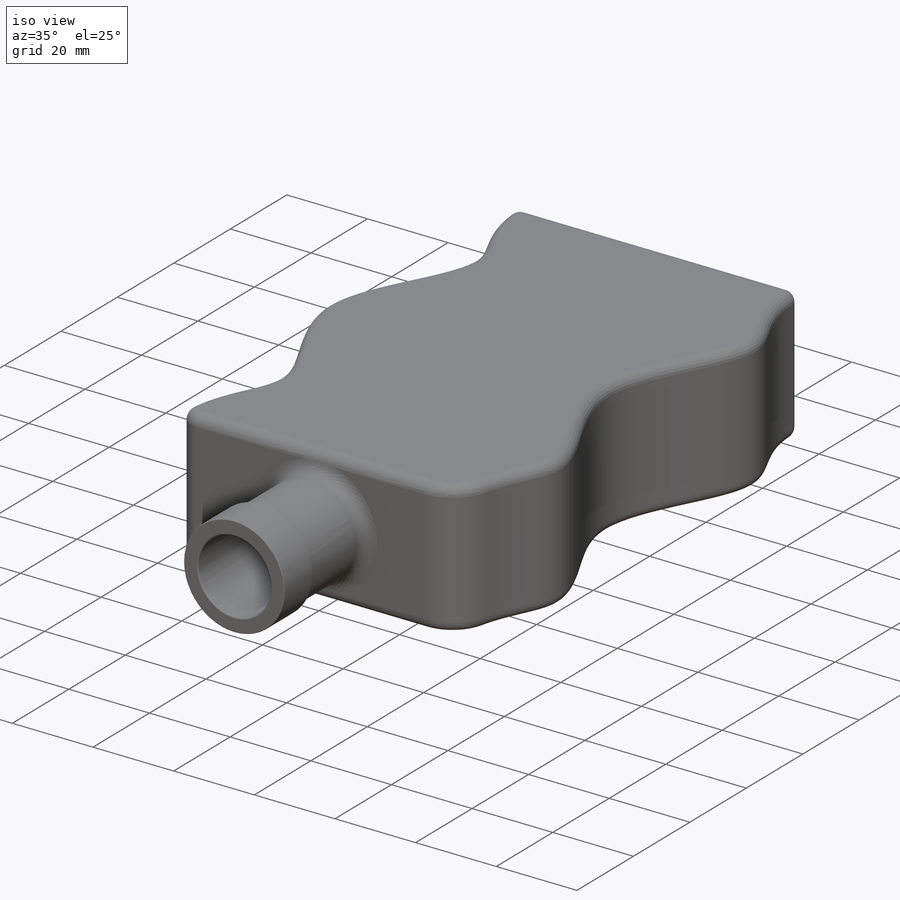
[diagram: iso view]
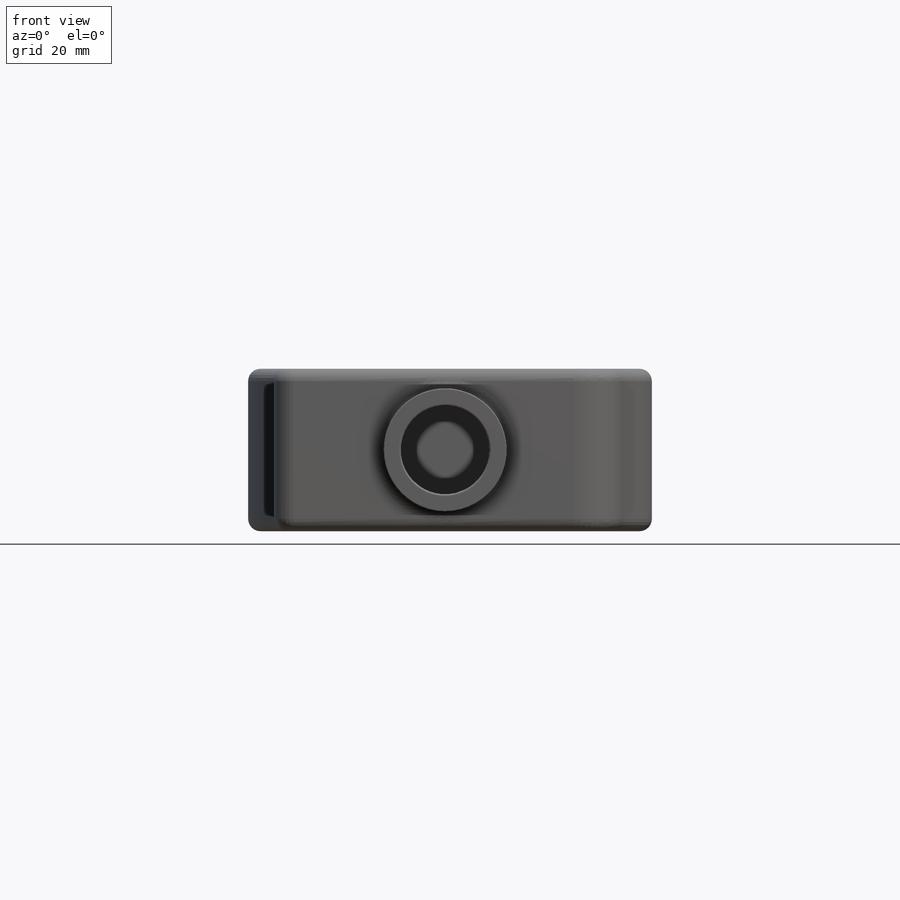
[diagram: front view]
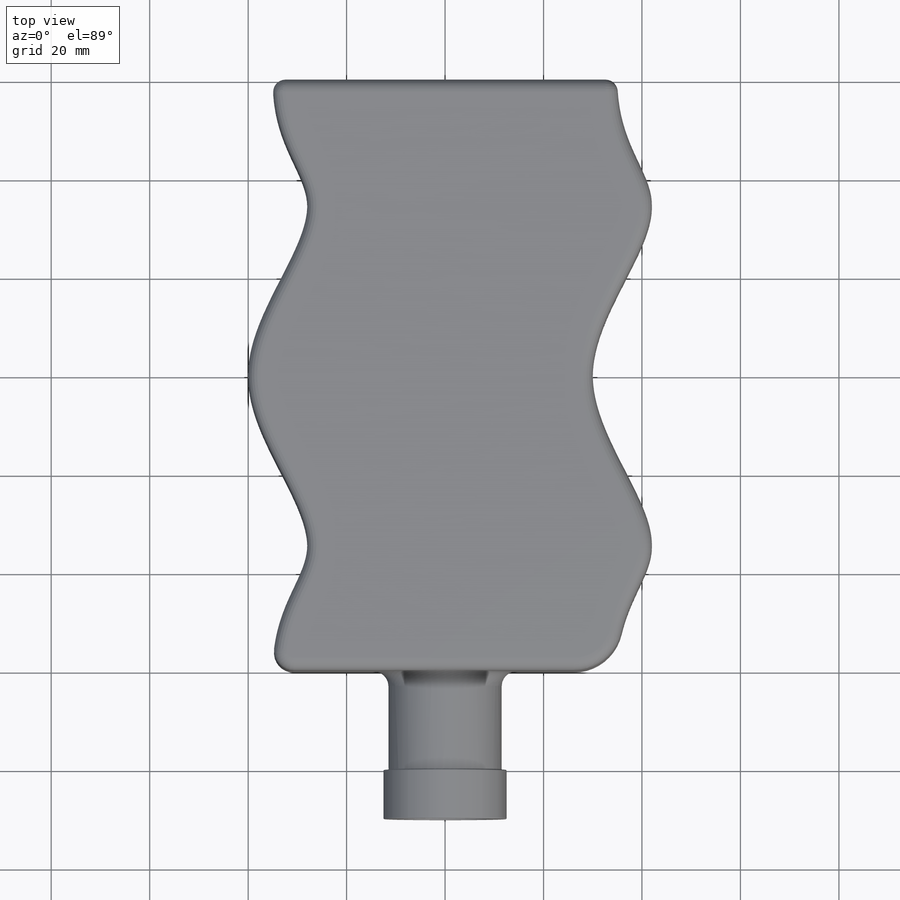
[diagram: top view]
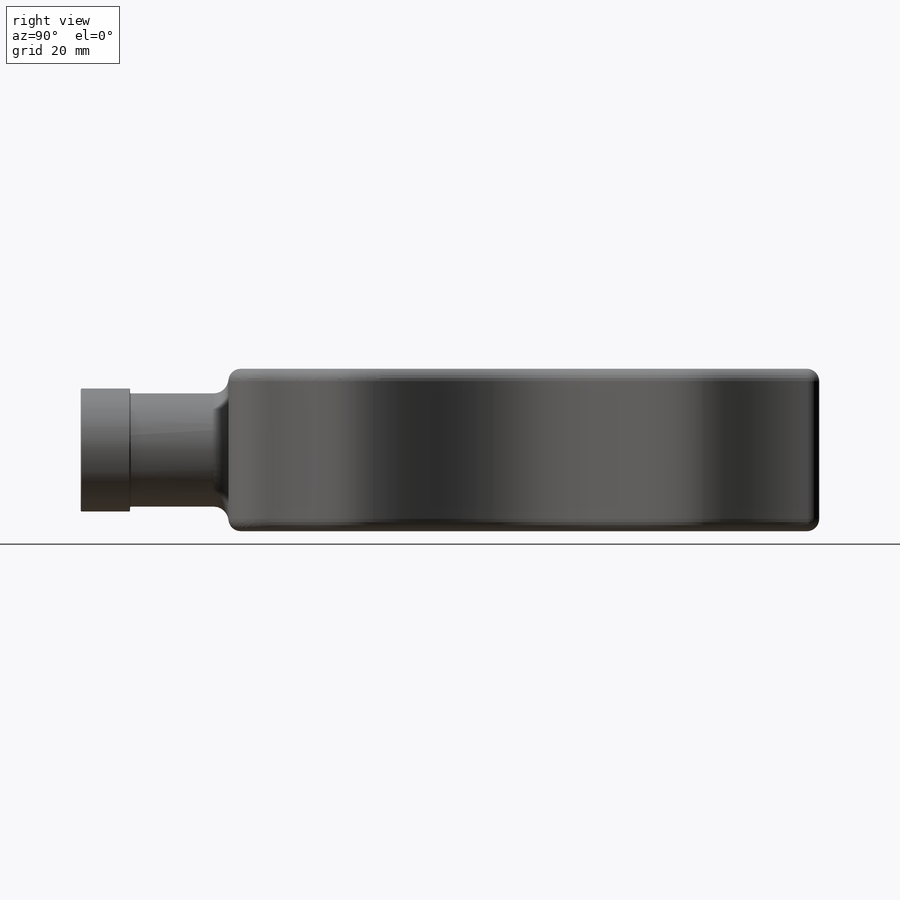
[diagram: right view]
SOLIDWORKS PART (.sldprt)
format: sldprt  version: not decoded by parser v0  size: 538,624 bytes
history: native  units: mm
features: sketch x11, material x9, fillet x6, plane x1, shell x1 (+9 scaffold rows collapsed)
feature tree (37):
  scaffold x9  (default folders/planes/origin — collapsed)
  material  "Материал <не указан>"
  material  "Сверху"
  material  "Справа"
  material  "Плоскость1"
  material  "Плоскость2"
  material  "Плоскость3"
  material  "Плоскость4"
  material  "Плоскость5"
  material  "Плоскость6"
  plane  "Спереди"
  sketch  "Эскиз1"  dims[D1=70.0mm D2=33.0mm]
  sketch  "Эскиз2"  dims[D1=7.0mm]
  sketch  "Эскиз3"  dims[D1=5.0mm]
  sketch  "Эскиз4"
  sketch  "Эскиз5"
  sketch  "Эскиз6"  dims[D1=23.0mm]
  sketch  "Эскиз7"
  fillet  "Скругление2"  Radius=3mm
  fillet  "Скругление3"  Radius=4mm
  fillet  "Скругление7"  Radius=10mm
  fillet  "Скругление4"  Radius=2.5mm
  shell  "Оболочка1"  Thickness=2.5mm
  sketch  "Эскиз8"  dims[D1=1.0mm]
  sketch  "Эскиз9"
  sketch  "Эскиз10"  dims[D1=0.0mm]
  sketch  "Эскиз11"
  fillet  "Скругление5"  Radius=0.2mm
  fillet  "Скругление6"  Radius=0.4mm
decode coverage: 13 of 18 modeling features carry decoded parameters
note: suppression state not decoded; provenance and decode notes live in map.json
